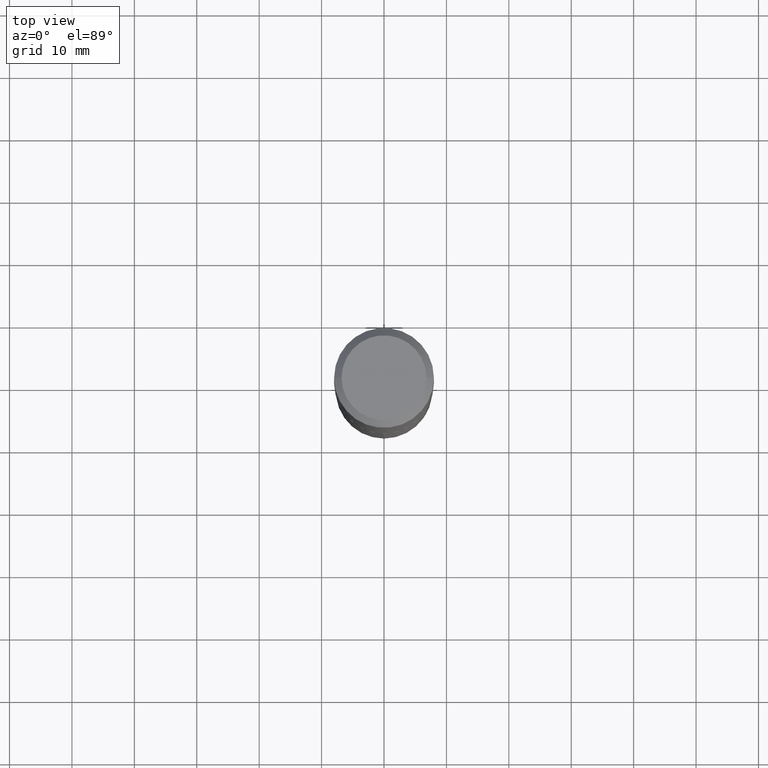
[diagram: clean part render]
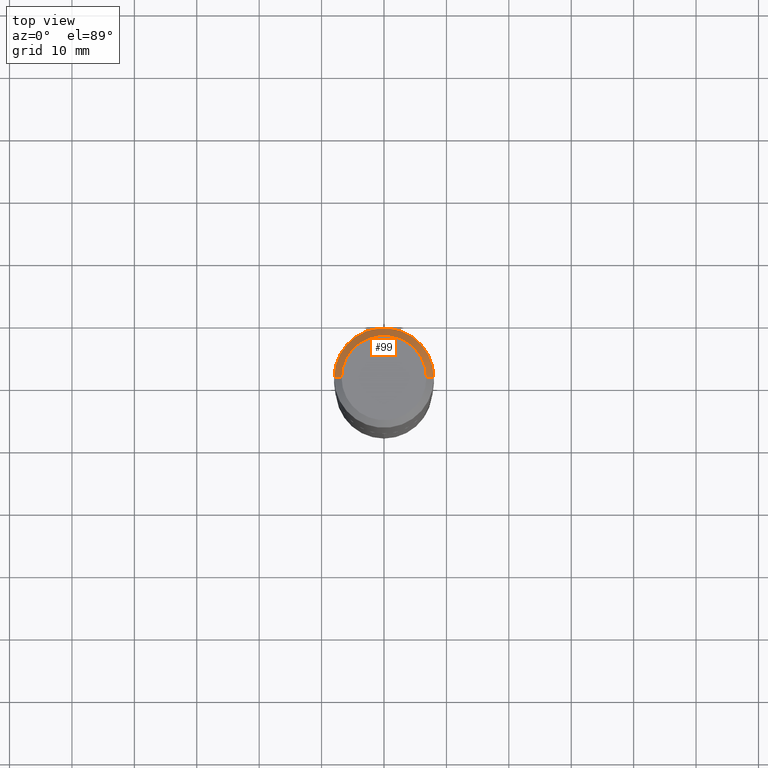
[diagram: same view with one face highlighted and labeled with its STEP entity id]
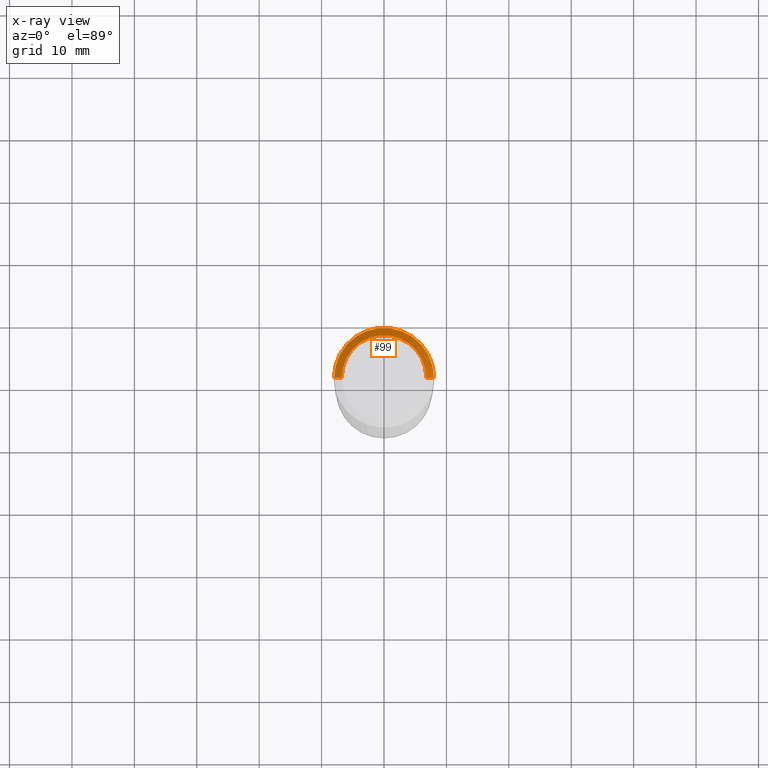
[diagram: x-ray of the same camera — body ghosted, the highlighted face saturated]
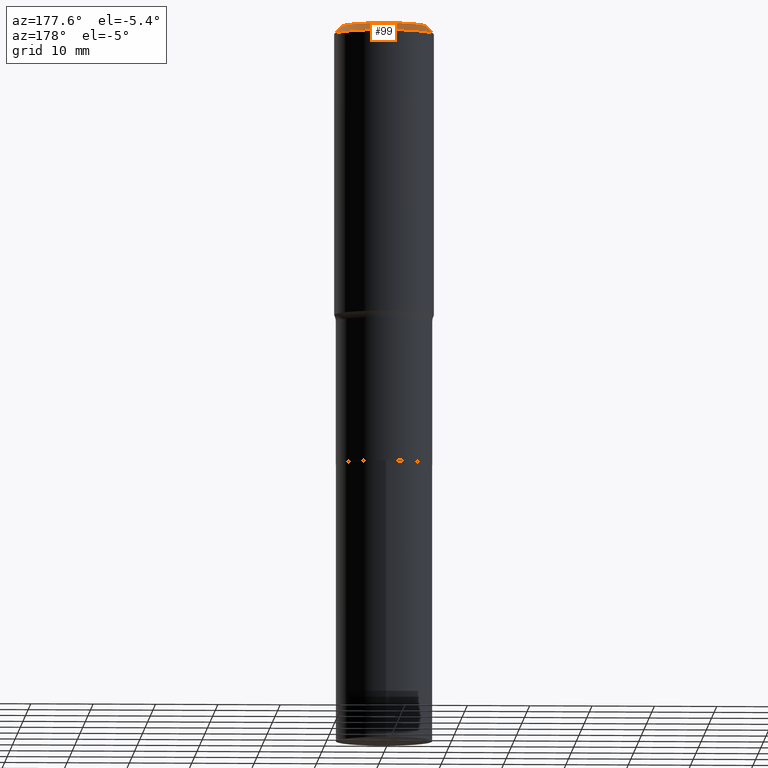
[diagram: same view with one face highlighted and labeled with its STEP entity id]
A machine part, top view. The second image highlights one B-rep face of the part: STEP entity #99.
The next image is the same camera in x-ray: the body ghosted, the highlighted face saturated — about 0% of this face is hidden behind the body in this view.
A second angle (auxiliary view) of the same face is appended — the face is thin or edge-on in the first view.
In plain terms, the highlighted conical surface has half-angle 45 deg.
Its self-contained STEP definition (entity closure, byte-faithful):
#3 = CARTESIAN_POINT ( 'NONE',  ( 1.155300600762020273E-30, -1.649463071502983032E-16, -0.04724250000000029120 ) ) ;
#8 = DIRECTION ( 'NONE',  ( -2.445468806185136597E-29, 3.491481338843145583E-15, 1.000000000000000000 ) ) ;
#25 = CARTESIAN_POINT ( 'NONE',  ( 0.3149500000000000077, -2.325660151548442036E-15, -0.04724250000000029120 ) ) ;
#31 = CARTESIAN_POINT ( 'NONE',  ( -0.3149500000000000077, 2.034337788186991592E-15, -0.04724250000000029120 ) ) ;
#36 = DIRECTION ( 'NONE',  ( -2.445468806185136597E-29, 3.491481338843145583E-15, 1.000000000000000000 ) ) ;
#63 = AXIS2_PLACEMENT_3D ( 'NONE', #229, #373, #341 ) ;
#67 = VERTEX_POINT ( 'NONE', #117 ) ;
#99 = ADVANCED_FACE ( 'NONE', ( #343 ), #374, .T. ) ;
#117 = CARTESIAN_POINT ( 'NONE',  ( 0.3149500000000000077, -2.364230402487588149E-15, -0.04724250000000029120 ) ) ;
#121 = LINE ( 'NONE', #25, #209 ) ;
#130 = ORIENTED_EDGE ( 'NONE', *, *, #311, .T. ) ;
#137 = CARTESIAN_POINT ( 'NONE',  ( -1.001697619218022568E-46, 1.430158722866391086E-32, 4.096137381448112218E-18 ) ) ;
#143 = EDGE_LOOP ( 'NONE', ( #413, #463, #130, #328 ) ) ;
#156 = EDGE_CURVE ( 'NONE', #426, #296, #387, .T. ) ;
#159 = EDGE_CURVE ( 'NONE', #280, #67, #121, .T. ) ;
#160 = DIRECTION ( 'NONE',  ( -0.7071067811865453523, 2.468850131082234184E-15, -0.7071067811865496822 ) ) ;
#180 = CARTESIAN_POINT ( 'NONE',  ( -0.2677074999999999871, 1.951864634611843833E-15, 4.096137381434750116E-18 ) ) ;
#201 = VECTOR ( 'NONE', #160, 39.37007874015748143 ) ;
#208 = CARTESIAN_POINT ( 'NONE',  ( 0.2677074999999999871, -2.081133459643432233E-15, 4.096137381461924987E-18 ) ) ;
#209 = VECTOR ( 'NONE', #272, 39.37007874015748143 ) ;
#214 = DIRECTION ( 'NONE',  ( 1.000000000000000000, -6.982962677686267499E-15, 4.876236838442819371E-29 ) ) ;
#220 = DIRECTION ( 'NONE',  ( 1.000000000000000000, -6.982962677686266711E-15, 0.000000000000000000 ) ) ;
#229 = CARTESIAN_POINT ( 'NONE',  ( 1.155300600762020273E-30, -1.649463071502983032E-16, -0.04724250000000029120 ) ) ;
#240 = CIRCLE ( 'NONE', #286, 0.3149500000000000077 ) ;
#272 = DIRECTION ( 'NONE',  ( 0.7071067811865453523, -7.319954787623248157E-15, -0.7071067811865496822 ) ) ;
#280 = VERTEX_POINT ( 'NONE', #208 ) ;
#286 = AXIS2_PLACEMENT_3D ( 'NONE', #3, #36, #220 ) ;
#295 = CARTESIAN_POINT ( 'NONE',  ( -0.3149500000000000077, -1.035870671245955397E-15, -0.04724250000000029120 ) ) ;
#296 = VERTEX_POINT ( 'NONE', #295 ) ;
#311 = EDGE_CURVE ( 'NONE', #67, #296, #240, .T. ) ;
#328 = ORIENTED_EDGE ( 'NONE', *, *, #156, .F. ) ;
#341 = DIRECTION ( 'NONE',  ( -1.000000000000000000, 6.982962677686266711E-15, 0.000000000000000000 ) ) ;
#343 = FACE_OUTER_BOUND ( 'NONE', #143, .T. ) ;
#373 = DIRECTION ( 'NONE',  ( 2.445468806185136597E-29, -3.491481338843145583E-15, -1.000000000000000000 ) ) ;
#374 = CONICAL_SURFACE ( 'NONE', #63, 0.3149500000000000077, 0.7853981633974452814 ) ;
#387 = LINE ( 'NONE', #31, #201 ) ;
#408 = CIRCLE ( 'NONE', #434, 0.2677074999999999871 ) ;
#413 = ORIENTED_EDGE ( 'NONE', *, *, #466, .F. ) ;
#426 = VERTEX_POINT ( 'NONE', #180 ) ;
#434 = AXIS2_PLACEMENT_3D ( 'NONE', #137, #8, #214 ) ;
#463 = ORIENTED_EDGE ( 'NONE', *, *, #159, .T. ) ;
#466 = EDGE_CURVE ( 'NONE', #280, #426, #408, .T. ) ;